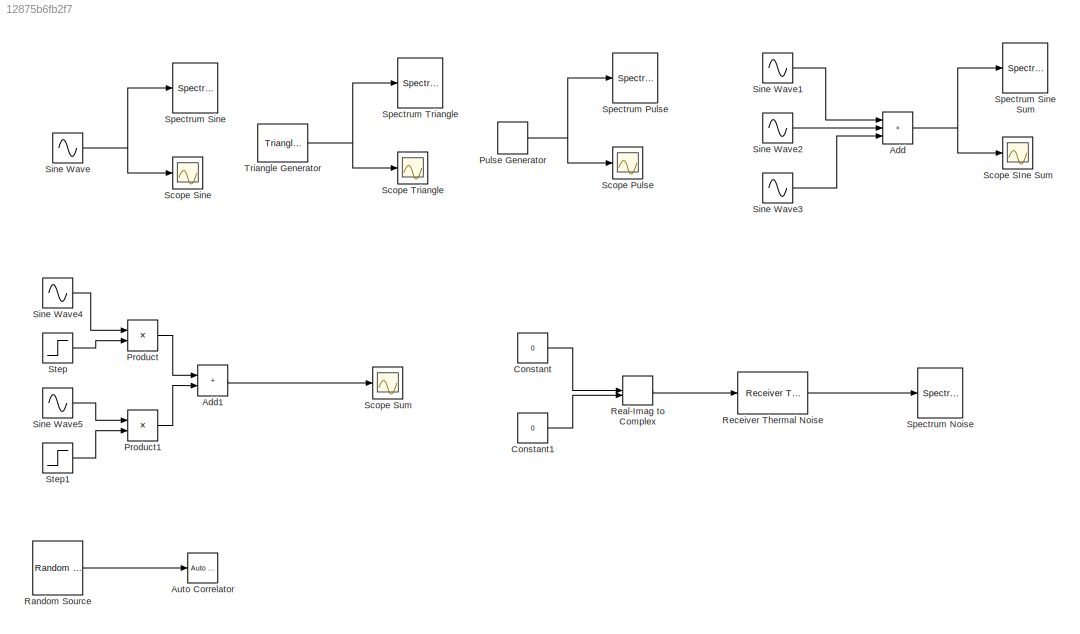
MODEL slx_12875b6fb2f7
KIND model
CONFIG AbsTol = auto
CONFIG EnableMultiTasking = off
CONFIG FixedStep = auto
CONFIG MaxStep = auto
CONFIG MinStep = auto
CONFIG RelTol = 1e-3
CONFIG SampleTimeConstraint = Unconstrained
CONFIG SolverName = VariableStepAuto
CONFIG StartTime = 0.0
CONFIG StopTime = 10.0
BLOCK [Sum] Add
  IconShape = rectangular
  Inputs = +++
BLOCK [Sum] Add1
  IconShape = rectangular
BLOCK [Reference] Auto Correlator  REF=simulink_extras/Additional
Sinks/Auto
Correlator
  SourceBlock = simulink_extras/Additional\nSinks/Auto\nCorrelator
  SourceType = Auto Correlator
BLOCK [Constant] Constant
  SampleTime = 1e-6
  Value = 0
BLOCK [Constant] Constant1
  SampleTime = 1e-6
  Value = 0
BLOCK [Product] Product
BLOCK [Product] Product1
BLOCK [DiscretePulseGenerator] Pulse Generator
  Period = 5000
  PulseWidth = 1000
  SampleTime = 1e-4
BLOCK [Reference] Random Source  REF=dspsrcs4/Random
Source
  SourceBlock = dspsrcs4/Random\nSource
  SourceType = dsp.simulink.RandomSource
BLOCK [RealImagToComplex] Real-Imag to Complex
BLOCK [Reference] Receiver Thermal Noise  REF=commrflib2/Receiver
Thermal Noise
  SourceBlock = commrflib2/Receiver\nThermal Noise
  SourceType = Receiver Thermal Noise
BLOCK [Scope] Scope Pulse
  Floating = off
  NumInputPorts = 1
  ScopeSpecificationString = Simulink.scopes.TimeScopeBlockCfg('CurrentConfiguration', extmgr.ConfigurationSet(extmgr.Configuration('Core','General UI',true),extmgr.Configuration('Core','Source UI',true),extmgr.Configuration('Sources','WiredSimulink',true,'DataLoggingVariableName','ScopeData5'),extmgr.Configuration('Visuals','Time Domain',true,'SerializedDisplays',{struct('MinYLimReal','-1.25','MaxYLimReal','1.25','YLabelReal...<+1476ch>
BLOCK [Scope] Scope SIne Sum
  Floating = off
  NumInputPorts = 1
  ScopeSpecificationString = Simulink.scopes.TimeScopeBlockCfg('CurrentConfiguration', extmgr.ConfigurationSet(extmgr.Configuration('Core','General UI',true),extmgr.Configuration('Core','Source UI',true),extmgr.Configuration('Sources','WiredSimulink',true,'DataLoggingVariableName','ScopeData1'),extmgr.Configuration('Visuals','Time Domain',true,'SerializedDisplays',{struct('MinYLimReal','-1.25','MaxYLimReal','1.25','YLabelReal...<+1476ch>
BLOCK [Scope] Scope Sine
  Floating = off
  NumInputPorts = 1
  ScopeSpecificationString = Simulink.scopes.TimeScopeBlockCfg('CurrentConfiguration', extmgr.ConfigurationSet(extmgr.Configuration('Core','General UI',true),extmgr.Configuration('Core','Source UI',true),extmgr.Configuration('Sources','WiredSimulink',true,'DataLoggingVariableName','ScopeData3'),extmgr.Configuration('Visuals','Time Domain',true,'SerializedDisplays',{struct('MinYLimReal','-1.25','MaxYLimReal','1.25','YLabelReal...<+1476ch>
BLOCK [Scope] Scope Sum
  Floating = off
  NumInputPorts = 1
  ScopeSpecificationString = Simulink.scopes.TimeScopeBlockCfg('CurrentConfiguration', extmgr.ConfigurationSet(extmgr.Configuration('Core','General UI',true),extmgr.Configuration('Core','Source UI',true),extmgr.Configuration('Sources','WiredSimulink',true),extmgr.Configuration('Visuals','Time Domain',true,'SerializedDisplays',{struct('MinYLimReal','-1.25','MaxYLimReal','1.25','YLabelReal','','MinYLimMag','0.00000','MaxYLimMag...<+1437ch>
BLOCK [Scope] Scope Triangle
  Floating = off
  NumInputPorts = 1
  ScopeSpecificationString = Simulink.scopes.TimeScopeBlockCfg('CurrentConfiguration', extmgr.ConfigurationSet(extmgr.Configuration('Core','General UI',true),extmgr.Configuration('Core','Source UI',true),extmgr.Configuration('Sources','WiredSimulink',true,'DataLoggingVariableName','ScopeData4'),extmgr.Configuration('Visuals','Time Domain',true,'SerializedDisplays',{struct('MinYLimReal','-1.25','MaxYLimReal','1.25','YLabelReal...<+1476ch>
BLOCK [Sin] Sine Wave
  Amplitude = 0.5
  SampleTime = 1e-4
  Samples = 1000
  SineType = Sample based
BLOCK [Sin] Sine Wave1
  Amplitude = 0.5
  SampleTime = 1e-4
  Samples = 1000
  SineType = Sample based
BLOCK [Sin] Sine Wave2
  Amplitude = 2
  SampleTime = 1e-4
  Samples = 500
  SineType = Sample based
BLOCK [Sin] Sine Wave3
  Amplitude = 1.5
  SampleTime = 1e-4
  Samples = 100
  SineType = Sample based
BLOCK [Sin] Sine Wave4
  Amplitude = 0.5
  SampleTime = 1e-3
  Samples = 1000
  SineType = Sample based
BLOCK [Sin] Sine Wave5
  Amplitude = 0.5
  SampleTime = 1e-3
  Samples = 1000
  SineType = Sample based
BLOCK [SpectrumAnalyzer] Spectrum Noise
  GraphicalSettings = {"GraphicalSettings":{"Style":{"BackgroundColor":[0.12941176470588237,0.12941176470588237,0.12941176470588237],"AxesColor":[0.07058823529411765,0.07058823529411765,0.07058823529411765],"LabelsColor":[0.8509803921568627,0.8509803921568627,0.8509803921568627],"PreserveColors":false,"Visible":[true],"LineStyle":["-"],"LineColor":[[1,0.9098039215686274,0.39215686274509803]],"LineWidth":[1.5],"Marker":...<+944ch>  <repeated x5 — deduplicated; at blocks: Spectrum Noise, Spectrum Pulse, Spectrum Sine, Spectrum Sine Sum, Spectrum Triangle>
  ScopeFrameLocation = window
  SelectedToolstripTab = spectrumAnalyzerToolstrip.channelMeasurementsTab
  Span = 1000000
  StartFrequency = -500000
  StopFrequency = 500000
  WasSavedAsWebScope = on
  WindowPosition = [0.000000,36.000000,1280.000000,521.000000,]
  YLimits = [-148.27653226,-140.9112126]
BLOCK [SpectrumAnalyzer] Spectrum Pulse
  ScopeFrameLocation = window
  SelectedToolstripTab = spectrumAnalyzerToolstrip.channelMeasurementsTab
  Span = 1000000
  StartFrequency = -500000
  StopFrequency = 500000
  WasSavedAsWebScope = on
  WindowPosition = [0.000000,36.000000,1280.000000,521.000000,]
  YLimits = [-148.27653226,-140.9112126]
BLOCK [SpectrumAnalyzer] Spectrum Sine
  ScopeFrameLocation = window
  SelectedToolstripTab = spectrumAnalyzerToolstrip.channelMeasurementsTab
  Span = 1000000
  StartFrequency = -500000
  StopFrequency = 500000
  WasSavedAsWebScope = on
  WindowPosition = [0.000000,36.000000,1280.000000,521.000000,]
  YLimits = [-148.27653226,-140.9112126]
BLOCK [SpectrumAnalyzer] Spectrum Sine Sum
  ScopeFrameLocation = window
  SelectedToolstripTab = spectrumAnalyzerToolstrip.channelMeasurementsTab
  Span = 1000000
  StartFrequency = -500000
  StopFrequency = 500000
  WasSavedAsWebScope = on
  WindowPosition = [0.000000,36.000000,1280.000000,521.000000,]
  YLimits = [-148.27653226,-140.9112126]
BLOCK [SpectrumAnalyzer] Spectrum Triangle
  ScopeFrameLocation = window
  SelectedToolstripTab = spectrumAnalyzerToolstrip.channelMeasurementsTab
  Span = 1000000
  StartFrequency = -500000
  StopFrequency = 500000
  WasSavedAsWebScope = on
  WindowPosition = [0.000000,36.000000,1280.000000,521.000000,]
  YLimits = [-148.27653226,-140.9112126]
BLOCK [Step] Step
  SampleTime = 0
  Time = 2
BLOCK [Step] Step1
  SampleTime = 0
  Time = 4
BLOCK [Reference] Triangle Generator  REF=spsTriangleGeneratorLib/Triangle
Generator
  LibrarySourceBlock = sps_lib/Sources/Signal Generator Sources/Triangle\nGenerator
  SourceBlock = spsTriangleGeneratorLib/Triangle\nGenerator
  SourceType = Triangle Generator
LINE Add1:1 -> Scope Sum:1
NET Add:1 -> Scope SIne Sum:1, Spectrum Sine Sum:1
LINE Constant1:1 -> Real-Imag to Complex:2
LINE Constant:1 -> Real-Imag to Complex:1
LINE Product1:1 -> Add1:2
LINE Product:1 -> Add1:1
NET Pulse Generator:1 -> Scope Pulse:1, Spectrum Pulse:1
LINE Random Source:1 -> Auto Correlator:1
LINE Real-Imag to Complex:1 -> Receiver Thermal Noise:1
LINE Receiver Thermal Noise:1 -> Spectrum Noise:1
LINE Sine Wave1:1 -> Add:1
LINE Sine Wave2:1 -> Add:2
LINE Sine Wave3:1 -> Add:3
LINE Sine Wave4:1 -> Product:1
LINE Sine Wave5:1 -> Product1:1
NET Sine Wave:1 -> Scope Sine:1, Spectrum Sine:1
LINE Step1:1 -> Product1:2
LINE Step:1 -> Product:2
NET Triangle Generator:1 -> Scope Triangle:1, Spectrum Triangle:1
note: NET lines group one-source signal fan-out (src -> all destinations, sorted); 1:1 wires keep LINE
